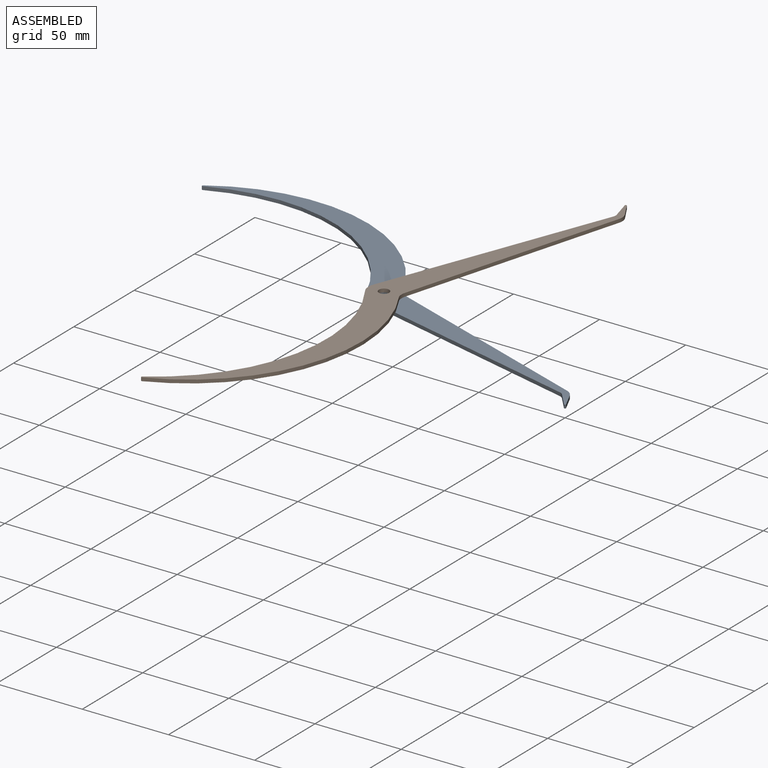
[diagram: assembled view]
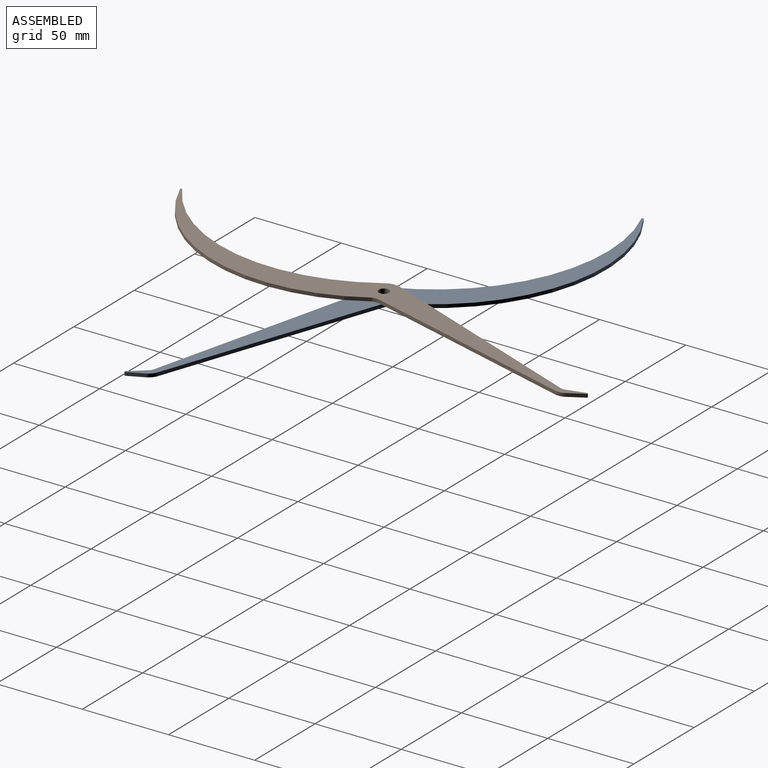
[diagram: assembled view, second angle]
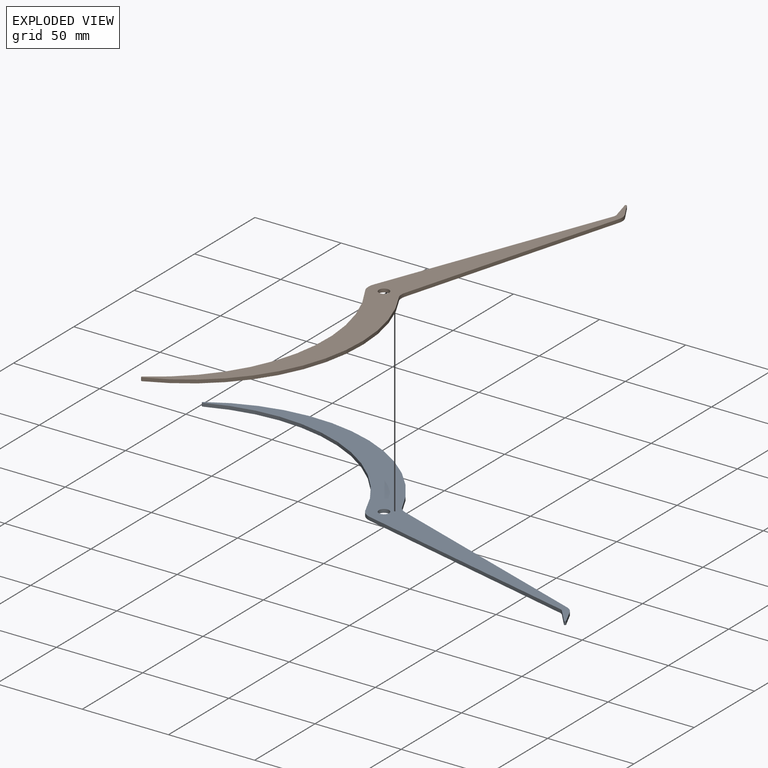
[diagram: exploded view]
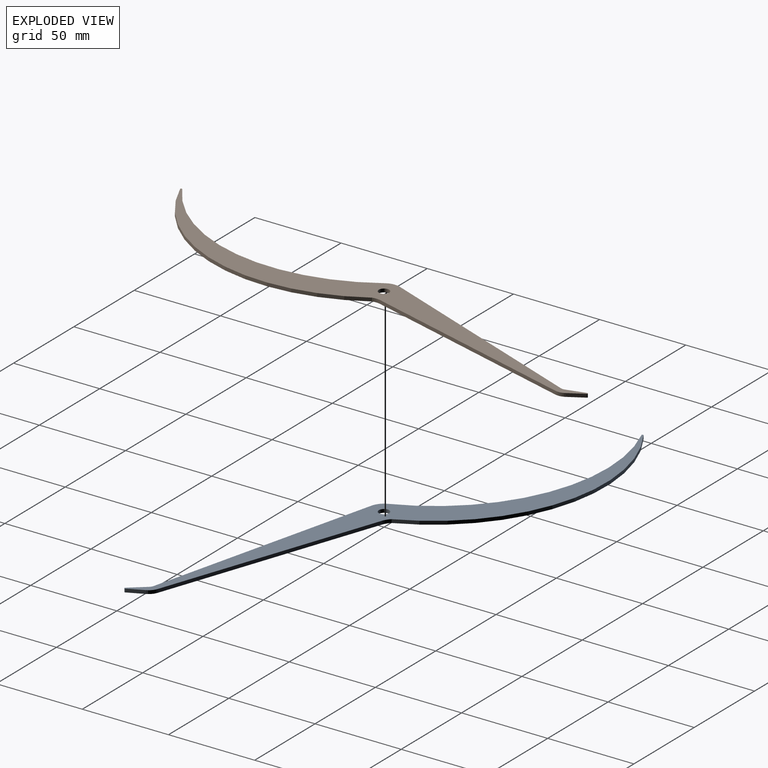
[diagram: exploded view, second angle]
ASSEMBLY  parts=2 mates=2
PART A: 15 faces, bbox 301x49.1x2 mm
  f0: cylinder r=9.16mm len=4.45mm, axis (0,0,-1), area 9.3mm2, adj f1,f11,f13,f14
  f1: plane 131.64x2mm, normal (-0.01,-1,0), area 263.3mm2, adj f0,f2,f13,f14
  f2: cylinder r=7.33mm len=5.28mm, axis (0,0,-1), area 11.7mm2, adj f1,f3,f13,f14
  f3: plane 7.07x7.07mm, normal (0.71,-0.71,0), area 20mm2, adj f2,f4,f13,f14
  f4: cylinder r=0.5mm len=2mm, axis (0,0,-1), area 2.9mm2, adj f3,f5,f13,f14
  f5: plane 9.9x5.71mm, normal (-0.5,0.87,0), area 22.9mm2, adj f4,f6,f13,f14
  f6: cylinder r=3.51mm len=2.13mm, axis (0,0,-1), area 4.4mm2, adj f5,f7,f13,f14
  f7: plane 136.76x14.68mm, normal (0.11,0.99,0), area 275.1mm2, adj f6,f8,f13,f14
  f8: cylinder r=9mm len=7.64mm, axis (0,0,-1), area 17mm2, adj f7,f9,f13,f14
  f9: cylinder r=100mm len=142.97mm, axis (0,0,-1), area 318.9mm2, adj f8,f10,f13,f14
  f10: cylinder r=0.5mm len=2mm, axis (0,0,-1), area 3mm2, adj f9,f11,f13,f14
  f11: cylinder r=100mm len=152.31mm, axis (0,0,-1), area 347mm2, adj f0,f10,f13,f14
  f12: cylinder r=3mm len=6mm, axis (0,0,-1), area 37.7mm2, adj f13,f14
  f13: plane 301x49.09mm, normal (0,0,1), area 3412.1mm2, adj f0,f1,f2,f3,f4,f5,f6,f7
  f14: plane 301x49.09mm, normal (0,0,-1), area 3412.1mm2, adj f0,f1,f2,f3,f4,f5,f6,f7
PART B: same geometry as A
PLACE A rot(axis=(0.98,-0.17,0),180deg) t=(0,0,-2)mm
PLACE B rot(axis=(0,0,1),75deg) t=(0,0,-2)mm
MATE cylindrical A.f12 <-> B.f12  axis (0,0,1) through (0,0,-2)mm
MATE planar A.f14 <-> B.f14  axis (0,0,1) through (-2.97,16.43,-2)mm
